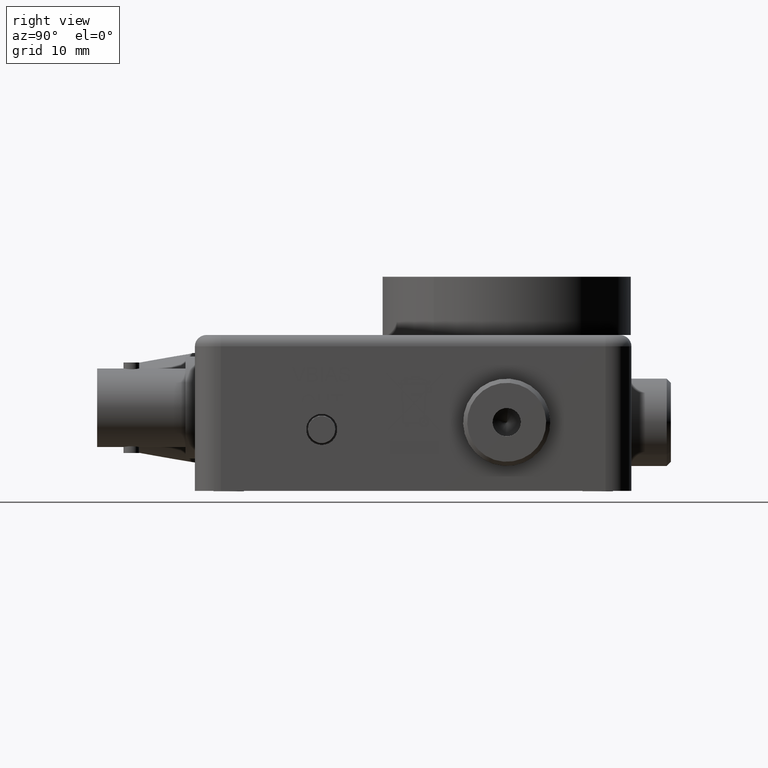
[diagram: clean part render]
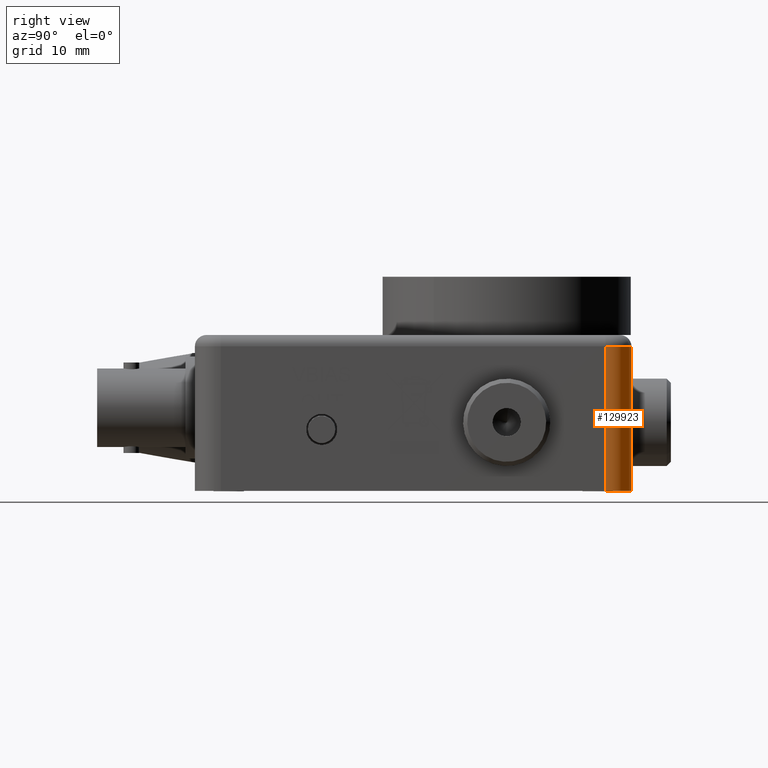
[diagram: same view with one face highlighted and labeled with its STEP entity id]
A machine part, right view. The second image highlights one B-rep face of the part: STEP entity #129923.
In plain terms, the highlighted cylindrical surface (edge-blend (fillet) strip) has radius 3.175 mm, axis along (0, 0, -1).
Its self-contained STEP definition (entity closure, byte-faithful):
#201 = ORIENTED_EDGE ( 'NONE', *, *, #93987, .T. ) ;
#3895 = FACE_OUTER_BOUND ( 'NONE', #126984, .T. ) ;
#7250 = ORIENTED_EDGE ( 'NONE', *, *, #25242, .F. ) ;
#15172 = CARTESIAN_POINT ( 'NONE',  ( 1.574999999999999700, 1.975000000000000100, 0.0000000000000000000 ) ) ;
#21417 = AXIS2_PLACEMENT_3D ( 'NONE', #41552, #112910, #51841 ) ;
#25242 = EDGE_CURVE ( 'NONE', #65088, #117046, #96265, .T. ) ;
#25431 = DIRECTION ( 'NONE',  ( -1.000000000000000000, 0.0000000000000000000, 0.0000000000000000000 ) ) ;
#26462 = CIRCLE ( 'NONE', #21417, 0.1249999999999999000 ) ;
#29193 = ORIENTED_EDGE ( 'NONE', *, *, #33081, .F. ) ;
#30126 = CARTESIAN_POINT ( 'NONE',  ( 1.700000000000000000, 1.975000000000000100, 0.7500000000000001100 ) ) ;
#31170 = LINE ( 'NONE', #30126, #55084 ) ;
#33081 = EDGE_CURVE ( 'NONE', #117046, #84932, #100760, .T. ) ;
#40784 = DIRECTION ( 'NONE',  ( -0.0000000000000000000, -0.0000000000000000000, 1.000000000000000000 ) ) ;
#41552 = CARTESIAN_POINT ( 'NONE',  ( 1.574999999999999700, 1.975000000000000100, 0.6950000000000000600 ) ) ;
#43443 = EDGE_CURVE ( 'NONE', #84932, #52989, #31170, .T. ) ;
#51841 = DIRECTION ( 'NONE',  ( -1.000000000000000000, 0.0000000000000000000, 0.0000000000000000000 ) ) ;
#52989 = VERTEX_POINT ( 'NONE', #68816 ) ;
#55084 = VECTOR ( 'NONE', #40784, 39.37007874015748100 ) ;
#64751 = DIRECTION ( 'NONE',  ( -1.000000000000000000, 0.0000000000000000000, 0.0000000000000000000 ) ) ;
#65088 = VERTEX_POINT ( 'NONE', #118693 ) ;
#68816 = CARTESIAN_POINT ( 'NONE',  ( 1.700000000000000000, 1.975000000000000100, 0.6950000000000000600 ) ) ;
#69098 = CARTESIAN_POINT ( 'NONE',  ( 1.700000000000000000, 1.975000000000000100, 0.0000000000000000000 ) ) ;
#69099 = ORIENTED_EDGE ( 'NONE', *, *, #43443, .F. ) ;
#69205 = VECTOR ( 'NONE', #125488, 39.37007874015748100 ) ;
#74637 = CARTESIAN_POINT ( 'NONE',  ( 1.574999999999999700, 1.975000000000000100, 0.7500000000000001100 ) ) ;
#84808 = DIRECTION ( 'NONE',  ( 0.0000000000000000000, 0.0000000000000000000, -1.000000000000000000 ) ) ;
#84932 = VERTEX_POINT ( 'NONE', #69098 ) ;
#86530 = DIRECTION ( 'NONE',  ( 0.0000000000000000000, 0.0000000000000000000, -1.000000000000000000 ) ) ;
#93099 = AXIS2_PLACEMENT_3D ( 'NONE', #74637, #84808, #64751 ) ;
#93987 = EDGE_CURVE ( 'NONE', #65088, #52989, #26462, .T. ) ;
#94704 = CARTESIAN_POINT ( 'NONE',  ( 1.574999999999999700, 2.100000000000000100, 0.7500000000000001100 ) ) ;
#96265 = LINE ( 'NONE', #94704, #69205 ) ;
#96378 = CYLINDRICAL_SURFACE ( 'NONE', #93099, 0.1249999999999999000 ) ;
#100283 = CARTESIAN_POINT ( 'NONE',  ( 1.574999999999999700, 2.100000000000000100, 0.0000000000000000000 ) ) ;
#100760 = CIRCLE ( 'NONE', #104056, 0.1249999999999999000 ) ;
#104056 = AXIS2_PLACEMENT_3D ( 'NONE', #15172, #86530, #25431 ) ;
#112910 = DIRECTION ( 'NONE',  ( 0.0000000000000000000, 0.0000000000000000000, -1.000000000000000000 ) ) ;
#117046 = VERTEX_POINT ( 'NONE', #100283 ) ;
#118693 = CARTESIAN_POINT ( 'NONE',  ( 1.574999999999999700, 2.100000000000000100, 0.6950000000000000600 ) ) ;
#125488 = DIRECTION ( 'NONE',  ( 0.0000000000000000000, 0.0000000000000000000, -1.000000000000000000 ) ) ;
#126984 = EDGE_LOOP ( 'NONE', ( #7250, #201, #69099, #29193 ) ) ;
#129923 = ADVANCED_FACE ( 'NONE', ( #3895 ), #96378, .T. ) ;